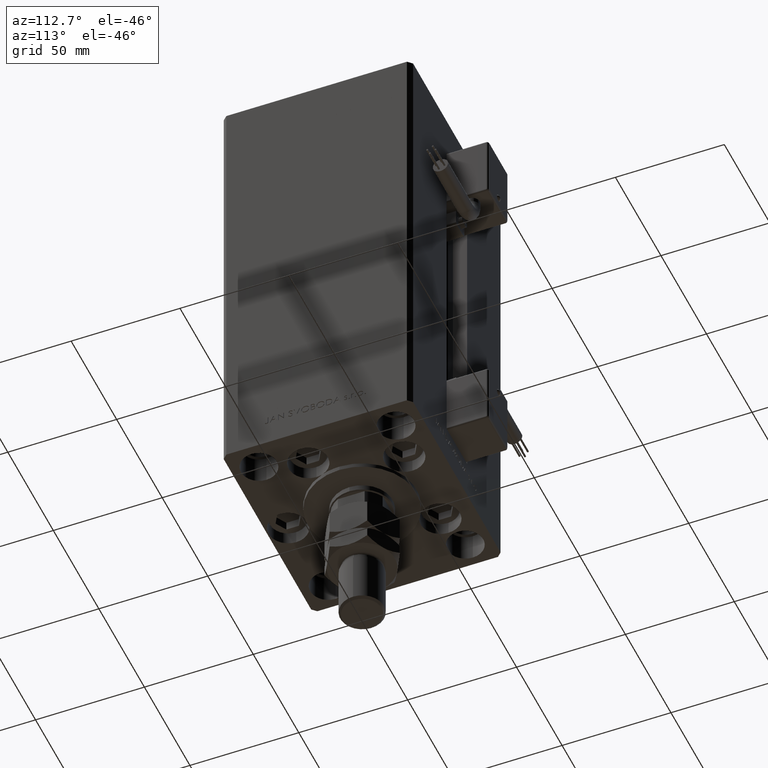
[diagram: clean part render]
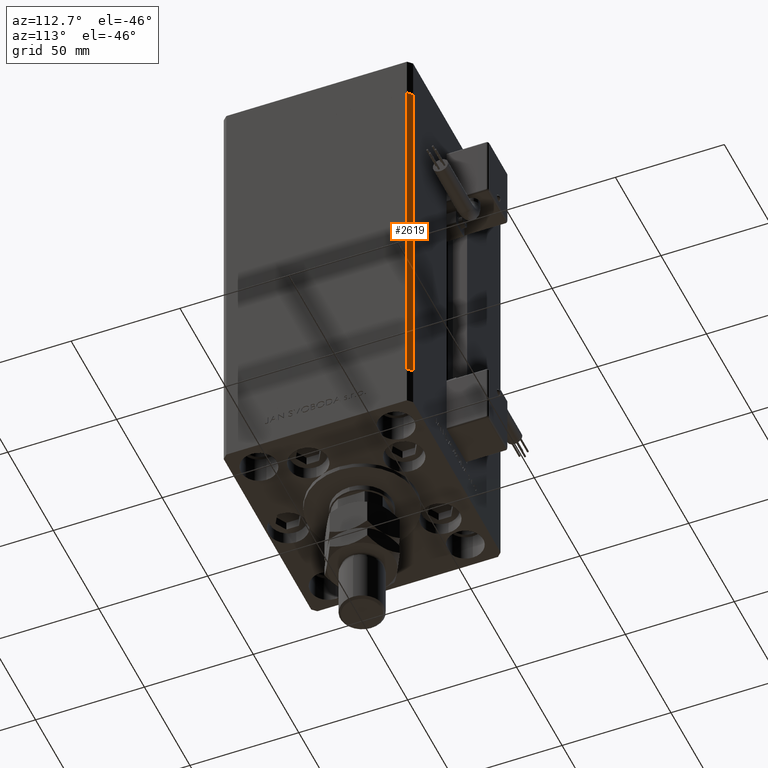
[diagram: same view with one face highlighted and labeled with its STEP entity id]
A machine part, auxiliary view. The second image highlights one B-rep face of the part: STEP entity #2619.
In plain terms, the highlighted planar face has unit normal (0.7071, 0.7071, 0).
Its self-contained STEP definition (entity closure, byte-faithful):
#603 = ORIENTED_EDGE ( 'NONE', *, *, #44507, .T. ) ;
#2501 = AXIS2_PLACEMENT_3D ( 'NONE', #20699, #33194, #17150 ) ;
#2619 = ADVANCED_FACE ( 'NONE', ( #16622 ), #37809, .T. ) ;
#4196 = ORIENTED_EDGE ( 'NONE', *, *, #35734, .T. ) ;
#7047 = VECTOR ( 'NONE', #22015, 1000.000000000000000 ) ;
#11928 = DIRECTION ( 'NONE',  ( -0.000000000000000000, -0.000000000000000000, -1.000000000000000000 ) ) ;
#12466 = CARTESIAN_POINT ( 'NONE',  ( 50.00000000000001421, 41.49999999999999289, 168.5000000000000000 ) ) ;
#15663 = ORIENTED_EDGE ( 'NONE', *, *, #25092, .F. ) ;
#16622 = FACE_OUTER_BOUND ( 'NONE', #35114, .T. ) ;
#17150 = DIRECTION ( 'NONE',  ( -0.7071067811865487940, 0.7071067811865463515, 0.000000000000000000 ) ) ;
#19565 = CARTESIAN_POINT ( 'NONE',  ( 50.00000000000001421, 41.49999999999999289, 168.5000000000000000 ) ) ;
#20699 = CARTESIAN_POINT ( 'NONE',  ( 48.00000000000000711, 43.50000000000000000, 168.5000000000000000 ) ) ;
#22015 = DIRECTION ( 'NONE',  ( 0.7071067811865487940, -0.7071067811865463515, 0.000000000000000000 ) ) ;
#25092 = EDGE_CURVE ( 'NONE', #28363, #52885, #30706, .T. ) ;
#27390 = CARTESIAN_POINT ( 'NONE',  ( 48.00000000000000711, 43.50000000000000000, 168.5000000000000000 ) ) ;
#28363 = VERTEX_POINT ( 'NONE', #37421 ) ;
#30165 = CARTESIAN_POINT ( 'NONE',  ( 48.00000000000000711, 43.50000000000000000, 0.000000000000000000 ) ) ;
#30706 = LINE ( 'NONE', #30165, #7047 ) ;
#30801 = CARTESIAN_POINT ( 'NONE',  ( 50.00000000000001421, 41.49999999999999289, 0.000000000000000000 ) ) ;
#33016 = LINE ( 'NONE', #49617, #36974 ) ;
#33194 = DIRECTION ( 'NONE',  ( 0.7071067811865463515, 0.7071067811865487940, -0.000000000000000000 ) ) ;
#34835 = ORIENTED_EDGE ( 'NONE', *, *, #53427, .F. ) ;
#35114 = EDGE_LOOP ( 'NONE', ( #15663, #34835, #603, #4196 ) ) ;
#35596 = VERTEX_POINT ( 'NONE', #19565 ) ;
#35734 = EDGE_CURVE ( 'NONE', #35596, #52885, #45084, .T. ) ;
#36974 = VECTOR ( 'NONE', #51893, 1000.000000000000000 ) ;
#37421 = CARTESIAN_POINT ( 'NONE',  ( 48.00000000000000711, 43.50000000000000000, 0.000000000000000000 ) ) ;
#37809 = PLANE ( 'NONE',  #2501 ) ;
#38498 = VECTOR ( 'NONE', #51601, 1000.000000000000000 ) ;
#43417 = LINE ( 'NONE', #27390, #38498 ) ;
#43910 = CARTESIAN_POINT ( 'NONE',  ( 48.00000000000000711, 43.50000000000000000, 168.5000000000000000 ) ) ;
#44507 = EDGE_CURVE ( 'NONE', #52611, #35596, #43417, .T. ) ;
#45084 = LINE ( 'NONE', #12466, #50302 ) ;
#49617 = CARTESIAN_POINT ( 'NONE',  ( 48.00000000000000711, 43.50000000000000000, 168.5000000000000000 ) ) ;
#50302 = VECTOR ( 'NONE', #11928, 1000.000000000000000 ) ;
#51601 = DIRECTION ( 'NONE',  ( 0.7071067811865487940, -0.7071067811865463515, 0.000000000000000000 ) ) ;
#51893 = DIRECTION ( 'NONE',  ( -0.000000000000000000, -0.000000000000000000, -1.000000000000000000 ) ) ;
#52611 = VERTEX_POINT ( 'NONE', #43910 ) ;
#52885 = VERTEX_POINT ( 'NONE', #30801 ) ;
#53427 = EDGE_CURVE ( 'NONE', #52611, #28363, #33016, .T. ) ;